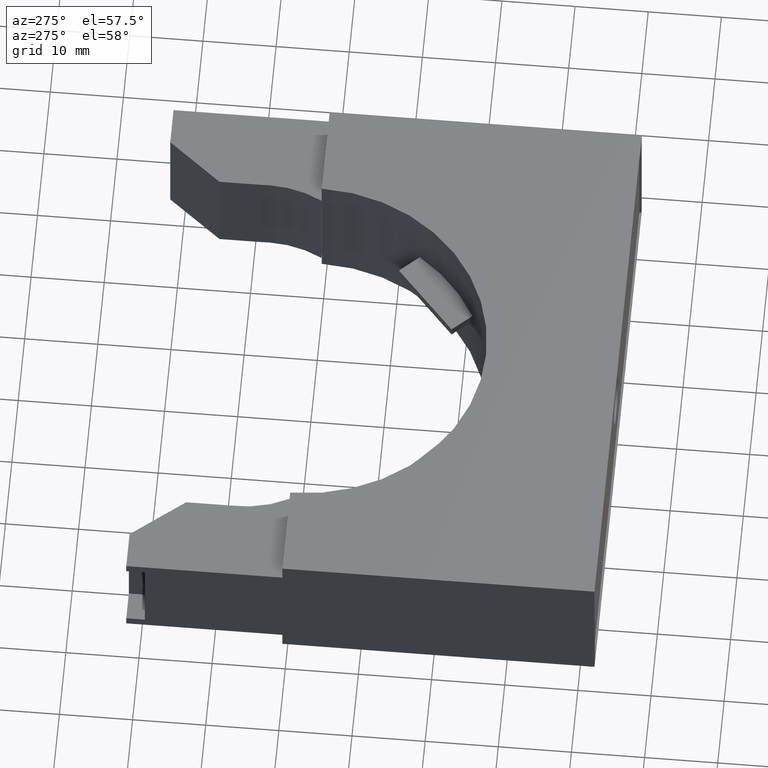
[diagram: clean part render]
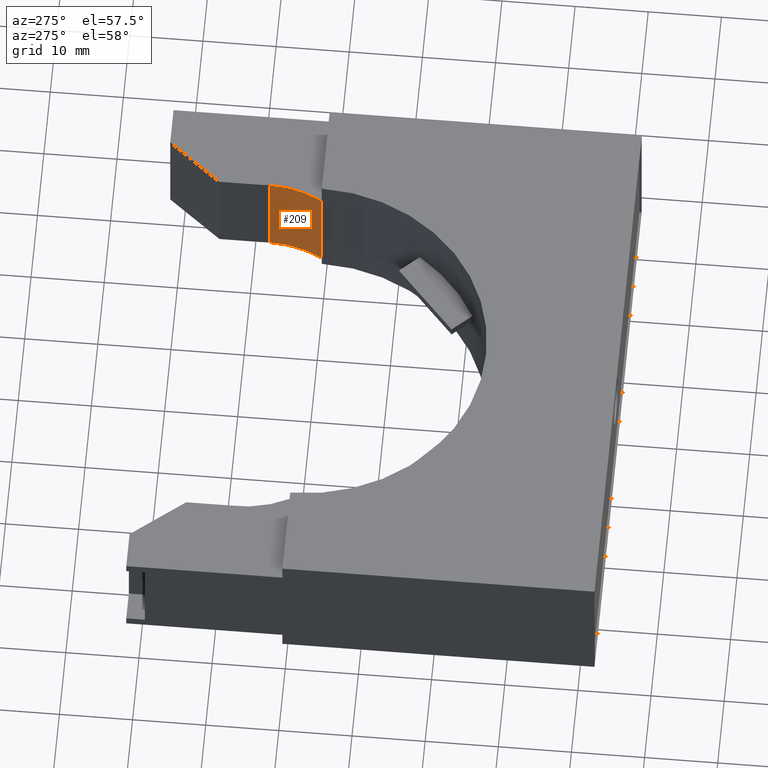
[diagram: same view with one face highlighted and labeled with its STEP entity id]
A machine part, auxiliary view. The second image highlights one B-rep face of the part: STEP entity #209.
In plain terms, the highlighted cylindrical surface (partial cylindrical patch) has radius 15.24 mm, axis along (-0, -0, 1).
Its self-contained STEP definition (entity closure, byte-faithful):
#26 = VERTEX_POINT ( 'NONE', #763 ) ;
#35 = EDGE_CURVE ( 'NONE', #39, #26, #767, .T. ) ;
#39 = VERTEX_POINT ( 'NONE', #896 ) ;
#209 = ADVANCED_FACE ( 'NONE', ( #929 ), #927, .F. ) ;
#210 = EDGE_LOOP ( 'NONE', ( #211, #212, #374, #349 ) ) ;
#211 = ORIENTED_EDGE ( 'NONE', *, *, #35, .F. ) ;
#212 = ORIENTED_EDGE ( 'NONE', *, *, #213, .T. ) ;
#213 = EDGE_CURVE ( 'NONE', #39, #214, #928, .T. ) ;
#214 = VERTEX_POINT ( 'NONE', #918 ) ;
#349 = ORIENTED_EDGE ( 'NONE', *, *, #350, .T. ) ;
#350 = EDGE_CURVE ( 'NONE', #376, #26, #1386, .T. ) ;
#374 = ORIENTED_EDGE ( 'NONE', *, *, #375, .T. ) ;
#375 = EDGE_CURVE ( 'NONE', #214, #376, #1150, .T. ) ;
#376 = VERTEX_POINT ( 'NONE', #1143 ) ;
#763 = CARTESIAN_POINT ( 'NONE',  ( 1.023909391388342600, 0.7073969429209047100, 0.6604500000000003100 ) ) ;
#764 = DIRECTION ( 'NONE',  ( -0.0000000000000000000, -0.0000000000000000000, 1.000000000000000000 ) ) ;
#765 = VECTOR ( 'NONE', #764, 39.37007874015748100 ) ;
#766 = CARTESIAN_POINT ( 'NONE',  ( 1.023909391388342600, 0.7073969429209047100, 0.0000000000000000000 ) ) ;
#767 = LINE ( 'NONE', #766, #765 ) ;
#896 = CARTESIAN_POINT ( 'NONE',  ( 1.023909391388342600, 0.7073969429209047100, 0.08954999999999976900 ) ) ;
#918 = CARTESIAN_POINT ( 'NONE',  ( 0.9506000000000002200, 0.4199999999999998700, 0.08954999999999972700 ) ) ;
#919 = DIRECTION ( 'NONE',  ( 0.0000000000000000000, -1.000000000000000000, -1.138269997360109900E-016 ) ) ;
#920 = DIRECTION ( 'NONE',  ( -0.0000000000000000000, 1.219574997171545800E-016, -1.000000000000000000 ) ) ;
#921 = CARTESIAN_POINT ( 'NONE',  ( 0.4239093913883427700, 0.7073969429209047100, 0.08954999999999976900 ) ) ;
#922 = AXIS2_PLACEMENT_3D ( 'NONE', #921, #920, #919 ) ;
#923 = DIRECTION ( 'NONE',  ( 1.000000000000000000, 0.0000000000000000000, 0.0000000000000000000 ) ) ;
#924 = DIRECTION ( 'NONE',  ( -0.0000000000000000000, -0.0000000000000000000, 1.000000000000000000 ) ) ;
#925 = CARTESIAN_POINT ( 'NONE',  ( 0.4239093913883427700, 0.7073969429209047100, 0.0000000000000000000 ) ) ;
#926 = AXIS2_PLACEMENT_3D ( 'NONE', #925, #924, #923 ) ;
#927 = CYLINDRICAL_SURFACE ( 'NONE', #926, 0.5999999999999998700 ) ;
#928 = CIRCLE ( 'NONE', #922, 0.5999999999999998700 ) ;
#929 = FACE_OUTER_BOUND ( 'NONE', #210, .T. ) ;
#1143 = CARTESIAN_POINT ( 'NONE',  ( 0.9506000000000002200, 0.4199999999999999800, 0.6604500000000000900 ) ) ;
#1144 = DIRECTION ( 'NONE',  ( -0.0000000000000000000, -0.0000000000000000000, 1.000000000000000000 ) ) ;
#1145 = VECTOR ( 'NONE', #1144, 39.37007874015748100 ) ;
#1146 = CARTESIAN_POINT ( 'NONE',  ( 0.9506000000000002200, 0.4199999999999999800, 0.0000000000000000000 ) ) ;
#1150 = LINE ( 'NONE', #1146, #1145 ) ;
#1198 = CARTESIAN_POINT ( 'NONE',  ( 0.4239093913883427700, 0.7073969429209047100, 0.6604500000000003100 ) ) ;
#1383 = DIRECTION ( 'NONE',  ( 0.0000000000000000000, 1.000000000000000000, 2.276539994720219800E-016 ) ) ;
#1384 = DIRECTION ( 'NONE',  ( -0.0000000000000000000, -1.626099996228727100E-016, 1.000000000000000000 ) ) ;
#1385 = AXIS2_PLACEMENT_3D ( 'NONE', #1198, #1384, #1383 ) ;
#1386 = CIRCLE ( 'NONE', #1385, 0.5999999999999998700 ) ;